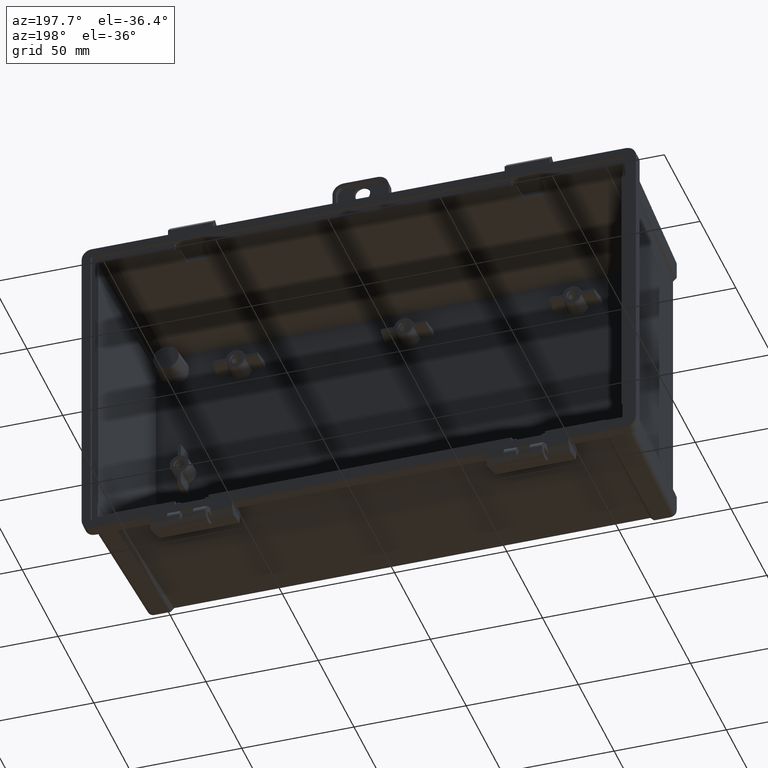
[diagram: clean part render]
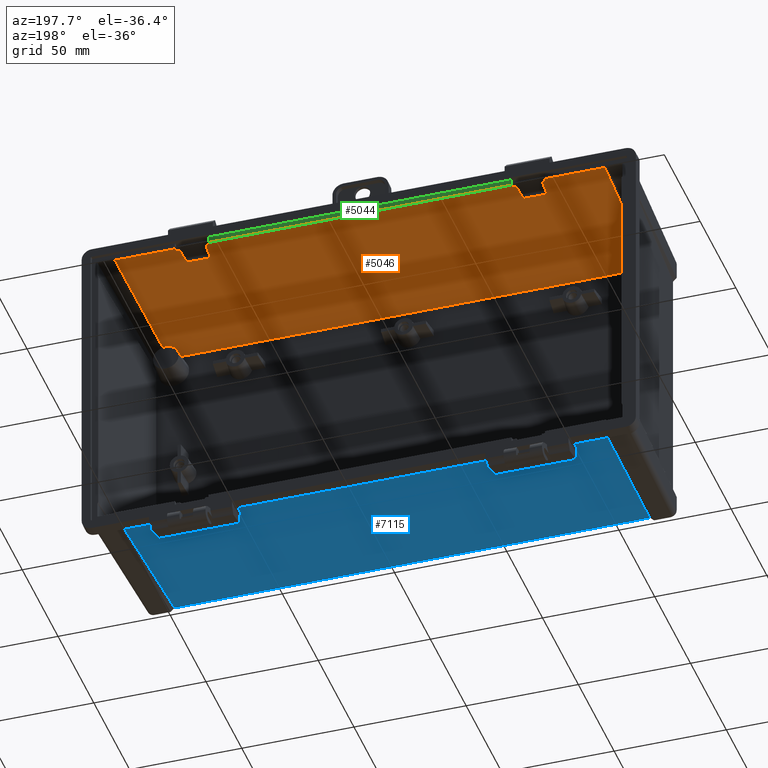
[diagram: same view with three faces highlighted in distinct colors, each labeled with its STEP entity id]
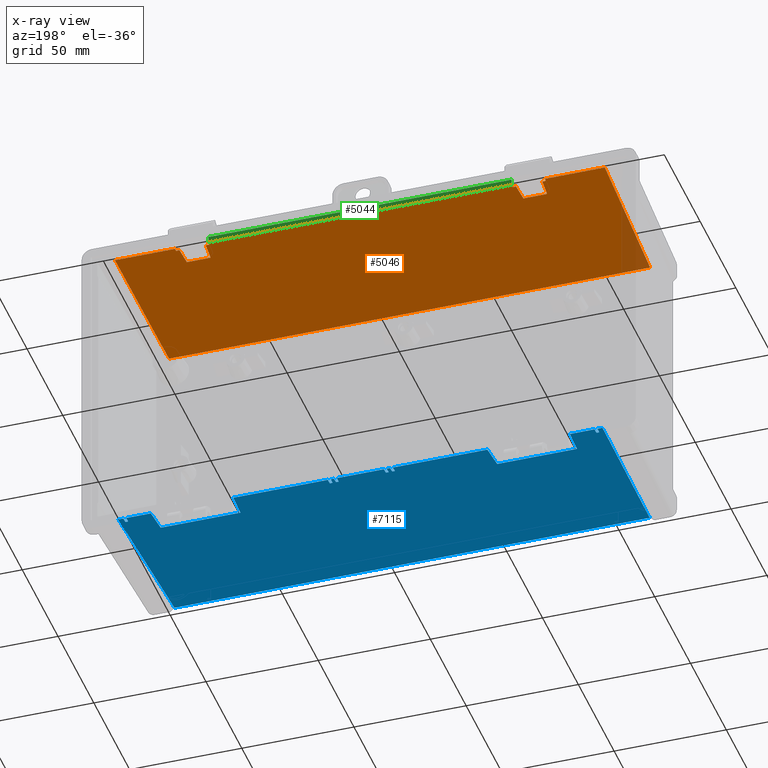
[diagram: x-ray of the same camera — body ghosted, the three highlighted faces saturated]
A machine part, auxiliary view with three faces highlighted in distinct colors.
The next image is the same camera in x-ray (body ghosted, the three faces saturated) — at least one of them is partly hidden behind the body in this view.
Their STEP definitions:

[orange] entity #5046 — the highlighted planar face has unit normal (0, -0.0523, 0.9986).
#872 = VERTEX_POINT ( 'NONE', #47724 ) ;
#874 = VERTEX_POINT ( 'NONE', #47725 ) ;
#927 = VERTEX_POINT ( 'NONE', #47760 ) ;
#929 = VERTEX_POINT ( 'NONE', #47761 ) ;
#941 = VERTEX_POINT ( 'NONE', #47769 ) ;
#943 = VERTEX_POINT ( 'NONE', #47770 ) ;
#959 = VERTEX_POINT ( 'NONE', #47782 ) ;
#961 = VERTEX_POINT ( 'NONE', #47783 ) ;
#963 = VERTEX_POINT ( 'NONE', #47784 ) ;
#965 = VERTEX_POINT ( 'NONE', #47785 ) ;
#967 = VERTEX_POINT ( 'NONE', #47786 ) ;
#968 = VERTEX_POINT ( 'NONE', #47787 ) ;
#969 = VERTEX_POINT ( 'NONE', #47788 ) ;
#970 = VERTEX_POINT ( 'NONE', #47789 ) ;
#971 = VERTEX_POINT ( 'NONE', #47790 ) ;
#973 = VERTEX_POINT ( 'NONE', #47791 ) ;
#4044 = ORIENTED_EDGE ( 'NONE', *, *, #5020, .T. ) ;
#4046 = ORIENTED_EDGE ( 'NONE', *, *, #5021, .F. ) ;
#4048 = ORIENTED_EDGE ( 'NONE', *, *, #4959, .F. ) ;
#4050 = ORIENTED_EDGE ( 'NONE', *, *, #7593, .T. ) ;
#4052 = ORIENTED_EDGE ( 'NONE', *, *, #5022, .F. ) ;
#4054 = ORIENTED_EDGE ( 'NONE', *, *, #5023, .F. ) ;
#4056 = ORIENTED_EDGE ( 'NONE', *, *, #7583, .T. ) ;
#4058 = ORIENTED_EDGE ( 'NONE', *, *, #5024, .F. ) ;
#4060 = ORIENTED_EDGE ( 'NONE', *, *, #4997, .F. ) ;
#4062 = ORIENTED_EDGE ( 'NONE', *, *, #5025, .F. ) ;
#4063 = ORIENTED_EDGE ( 'NONE', *, *, #5026, .T. ) ;
#4065 = ORIENTED_EDGE ( 'NONE', *, *, #5028, .T. ) ;
#4066 = ORIENTED_EDGE ( 'NONE', *, *, #5027, .F. ) ;
#4068 = ORIENTED_EDGE ( 'NONE', *, *, #5082, .F. ) ;
#4069 = ORIENTED_EDGE ( 'NONE', *, *, #5083, .T. ) ;
#4071 = ORIENTED_EDGE ( 'NONE', *, *, #5084, .F. ) ;
#4072 = ORIENTED_EDGE ( 'NONE', *, *, #5085, .T. ) ;
#4074 = ORIENTED_EDGE ( 'NONE', *, *, #5006, .F. ) ;
#4076 = ORIENTED_EDGE ( 'NONE', *, *, #5086, .T. ) ;
#4079 = ORIENTED_EDGE ( 'NONE', *, *, #5087, .F. ) ;
#4959 = EDGE_CURVE ( 'NONE', #872, #874, #18393, .T. ) ;
#4997 = EDGE_CURVE ( 'NONE', #927, #929, #22704, .T. ) ;
#5006 = EDGE_CURVE ( 'NONE', #941, #943, #22711, .T. ) ;
#5020 = EDGE_CURVE ( 'NONE', #959, #874, #22722, .T. ) ;
#5021 = EDGE_CURVE ( 'NONE', #961, #872, #22723, .T. ) ;
#5022 = EDGE_CURVE ( 'NONE', #46950, #961, #22724, .T. ) ;
#5023 = EDGE_CURVE ( 'NONE', #46952, #46949, #22725, .T. ) ;
#5024 = EDGE_CURVE ( 'NONE', #963, #46953, #22726, .T. ) ;
#5025 = EDGE_CURVE ( 'NONE', #929, #963, #22727, .T. ) ;
#5026 = EDGE_CURVE ( 'NONE', #927, #965, #22728, .T. ) ;
#5027 = EDGE_CURVE ( 'NONE', #967, #965, #22729, .T. ) ;
#5028 = EDGE_CURVE ( 'NONE', #967, #968, #22730, .T. ) ;
#5046 = ADVANCED_FACE ( 'NONE', ( #22747 ), #19700, .F. ) ;
#5082 = EDGE_CURVE ( 'NONE', #969, #968, #22886, .T. ) ;
#5083 = EDGE_CURVE ( 'NONE', #969, #970, #22887, .T. ) ;
#5084 = EDGE_CURVE ( 'NONE', #971, #970, #22888, .T. ) ;
#5085 = EDGE_CURVE ( 'NONE', #971, #943, #22889, .T. ) ;
#5086 = EDGE_CURVE ( 'NONE', #941, #973, #22890, .T. ) ;
#5087 = EDGE_CURVE ( 'NONE', #959, #973, #22891, .T. ) ;
#7583 = EDGE_CURVE ( 'NONE', #46952, #46953, #33501, .T. ) ;
#7593 = EDGE_CURVE ( 'NONE', #46950, #46949, #33503, .T. ) ;
#18393 = LINE ( 'NONE', #19473, #46319 ) ;
#19473 = CARTESIAN_POINT ( 'NONE',  ( -119.0000000000000300, -1.500000000000000000, 66.59134869185678000 ) ) ;
#19474 = DIRECTION ( 'NONE',  ( -1.000000000000000000, -0.0000000000000000000, 0.0000000000000000000 ) ) ;
#19558 = CARTESIAN_POINT ( 'NONE',  ( -119.0000000000000300, -1.500000000000000000, 66.59134869185678000 ) ) ;
#19559 = DIRECTION ( 'NONE',  ( -1.000000000000000000, -0.0000000000000000000, 0.0000000000000000000 ) ) ;
#19580 = CARTESIAN_POINT ( 'NONE',  ( -119.0000000000000300, -1.500000000000000000, 66.59134869185678000 ) ) ;
#19581 = DIRECTION ( 'NONE',  ( -1.000000000000000000, -0.0000000000000000000, 0.0000000000000000000 ) ) ;
#19614 = CARTESIAN_POINT ( 'NONE',  ( -109.1646878514005600, -1.488549029338853700, 66.59194881179981000 ) ) ;
#19615 = DIRECTION ( 'NONE',  ( -0.02767399372994194100, 0.9982470613321099400, 0.05231591166023782900 ) ) ;
#19616 = CARTESIAN_POINT ( 'NONE',  ( -81.69783906206481600, -15.30614250229795900, 65.86779942284617600 ) ) ;
#19617 = DIRECTION ( 'NONE',  ( -0.05226442768871403200, 0.9972646886342372300, 0.05226442768871403200 ) ) ;
#19618 = CARTESIAN_POINT ( 'NONE',  ( 119.0000000000000300, -3.000000000000000000, 66.51273702293225700 ) ) ;
#19619 = DIRECTION ( 'NONE',  ( -1.000000000000000000, -0.0000000000000000000, -0.0000000000000000000 ) ) ;
#19620 = CARTESIAN_POINT ( 'NONE',  ( 119.0000000000000300, -11.48629534754574300, 66.06798912942737400 ) ) ;
#19621 = DIRECTION ( 'NONE',  ( -1.000000000000000000, -0.0000000000000000000, -0.0000000000000000000 ) ) ;
#19622 = CARTESIAN_POINT ( 'NONE',  ( 119.0000000000000300, -3.000000000000000000, 66.51273702293225700 ) ) ;
#19623 = DIRECTION ( 'NONE',  ( -1.000000000000000000, -0.0000000000000000000, -0.0000000000000000000 ) ) ;
#19624 = CARTESIAN_POINT ( 'NONE',  ( -67.24231162210323000, 4.916987161487271300, 66.92764873867815800 ) ) ;
#19625 = DIRECTION ( 'NONE',  ( -0.05226442768871403200, -0.9972646886342372300, -0.05226442768871403200 ) ) ;
#19626 = CARTESIAN_POINT ( 'NONE',  ( 67.89242537769088400, -7.487922271453150800, 66.27753498309049000 ) ) ;
#19627 = DIRECTION ( 'NONE',  ( 0.05226442768871403200, -0.9972646886342372300, -0.05226442768871403200 ) ) ;
#19628 = CARTESIAN_POINT ( 'NONE',  ( 119.0000000000000300, -3.000000000000000000, 66.51273702293225700 ) ) ;
#19629 = DIRECTION ( 'NONE',  ( -1.000000000000000000, -0.0000000000000000000, -0.0000000000000000000 ) ) ;
#19630 = CARTESIAN_POINT ( 'NONE',  ( 69.49797734294693900, -8.009309827005429500, 66.25021021915819100 ) ) ;
#19631 = DIRECTION ( 'NONE',  ( 0.06444627875436294300, -0.9965535615346571300, -0.05222715909663704800 ) ) ;
#19700 = PLANE ( 'NONE',  #46404 ) ;
#19701 = CARTESIAN_POINT ( 'NONE',  ( 119.0000000000000300, -4.816824153149696000, 66.41752130371789100 ) ) ;
#19702 = DIRECTION ( 'NONE',  ( 0.0000000000000000000, -0.05233595624294395300, 0.9986295347545739400 ) ) ;
#19703 = DIRECTION ( 'NONE',  ( 0.0000000000000000000, -0.9986295347545739400, -0.05233595624294395300 ) ) ;
#19958 = CARTESIAN_POINT ( 'NONE',  ( 119.0000000000000300, -11.48629534754574300, 66.06798912942737400 ) ) ;
#19959 = DIRECTION ( 'NONE',  ( -1.000000000000000000, -0.0000000000000000000, -0.0000000000000000000 ) ) ;
#19960 = CARTESIAN_POINT ( 'NONE',  ( 80.86751506743809200, -2.357582988417645400, 66.54640467188293900 ) ) ;
#19961 = DIRECTION ( 'NONE',  ( 0.06444627875436294300, 0.9965535615346571300, 0.05222715909663704800 ) ) ;
#19962 = CARTESIAN_POINT ( 'NONE',  ( 119.0000000000000300, -3.000000000000000000, 66.51273702293225700 ) ) ;
#19963 = DIRECTION ( 'NONE',  ( -1.000000000000000000, -0.0000000000000000000, -0.0000000000000000000 ) ) ;
#19964 = CARTESIAN_POINT ( 'NONE',  ( 82.34795281765247000, -2.901233069357532100, 66.51791317843383000 ) ) ;
#19965 = DIRECTION ( 'NONE',  ( 0.05226442768871403200, 0.9972646886342372300, 0.05226442768871403200 ) ) ;
#19966 = CARTESIAN_POINT ( 'NONE',  ( 109.0800224824986900, -4.542569946145548000, 66.43189435766601000 ) ) ;
#19967 = DIRECTION ( 'NONE',  ( -0.02767399372994193100, -0.9982470613321099400, -0.05231591166023782900 ) ) ;
#19968 = CARTESIAN_POINT ( 'NONE',  ( 119.0000000000000300, -71.00000000000000000, 62.94900803168544500 ) ) ;
#19969 = DIRECTION ( 'NONE',  ( 1.000000000000000000, -0.0000000000000000000, -0.0000000000000000000 ) ) ;
#22704 = LINE ( 'NONE', #19558, #46354 ) ;
#22711 = LINE ( 'NONE', #19580, #46363 ) ;
#22722 = LINE ( 'NONE', #19614, #46377 ) ;
#22723 = LINE ( 'NONE', #19616, #46378 ) ;
#22724 = LINE ( 'NONE', #19618, #46379 ) ;
#22725 = LINE ( 'NONE', #19620, #46380 ) ;
#22726 = LINE ( 'NONE', #19622, #46381 ) ;
#22727 = LINE ( 'NONE', #19624, #46382 ) ;
#22728 = LINE ( 'NONE', #19626, #46383 ) ;
#22729 = LINE ( 'NONE', #19628, #46385 ) ;
#22730 = LINE ( 'NONE', #19630, #46387 ) ;
#22747 = FACE_OUTER_BOUND ( 'NONE', #47236, .T. ) ;
#22886 = LINE ( 'NONE', #19958, #46499 ) ;
#22887 = LINE ( 'NONE', #19960, #46500 ) ;
#22888 = LINE ( 'NONE', #19962, #46501 ) ;
#22889 = LINE ( 'NONE', #19964, #46502 ) ;
#22890 = LINE ( 'NONE', #19966, #46503 ) ;
#22891 = LINE ( 'NONE', #19968, #46504 ) ;
#33501 = LINE ( 'NONE', #36711, #35931 ) ;
#33503 = LINE ( 'NONE', #36723, #35933 ) ;
#35931 = VECTOR ( 'NONE', #36712, 1000.000000000000000 ) ;
#35933 = VECTOR ( 'NONE', #36724, 1000.000000000000000 ) ;
#36711 = CARTESIAN_POINT ( 'NONE',  ( -69.08002850903471900, -1.546432419265275900, 66.58891527187638800 ) ) ;
#36712 = DIRECTION ( 'NONE',  ( 0.06444627875436294300, 0.9965535615346571300, 0.05222715909663704800 ) ) ;
#36723 = CARTESIAN_POINT ( 'NONE',  ( -80.27416618904027200, -11.53272776681101400, 66.06555570944694000 ) ) ;
#36724 = DIRECTION ( 'NONE',  ( 0.06444627875436294300, -0.9965535615346571300, -0.05222715909663704800 ) ) ;
#42413 = CARTESIAN_POINT ( 'NONE',  ( -80.27716893445277400, -11.48629534754574300, 66.06798912942737400 ) ) ;
#42414 = CARTESIAN_POINT ( 'NONE',  ( -80.82597050084081000, -2.999999999999999100, 66.51273702293225700 ) ) ;
#42416 = CARTESIAN_POINT ( 'NONE',  ( -69.72283106554722600, -11.48629534754574500, 66.06798912942737400 ) ) ;
#42417 = CARTESIAN_POINT ( 'NONE',  ( -69.17402949915920400, -3.000000000000000900, 66.51273702293227100 ) ) ;
#46319 = VECTOR ( 'NONE', #19474, 1000.000000000000000 ) ;
#46354 = VECTOR ( 'NONE', #19559, 1000.000000000000000 ) ;
#46363 = VECTOR ( 'NONE', #19581, 1000.000000000000000 ) ;
#46377 = VECTOR ( 'NONE', #19615, 1000.000000000000000 ) ;
#46378 = VECTOR ( 'NONE', #19617, 1000.000000000000100 ) ;
#46379 = VECTOR ( 'NONE', #19619, 1000.000000000000000 ) ;
#46380 = VECTOR ( 'NONE', #19621, 1000.000000000000000 ) ;
#46381 = VECTOR ( 'NONE', #19623, 1000.000000000000000 ) ;
#46382 = VECTOR ( 'NONE', #19625, 1000.000000000000100 ) ;
#46383 = VECTOR ( 'NONE', #19627, 1000.000000000000100 ) ;
#46385 = VECTOR ( 'NONE', #19629, 1000.000000000000000 ) ;
#46387 = VECTOR ( 'NONE', #19631, 1000.000000000000000 ) ;
#46404 = AXIS2_PLACEMENT_3D ( 'NONE', #19701, #19702, #19703 ) ;
#46499 = VECTOR ( 'NONE', #19959, 1000.000000000000000 ) ;
#46500 = VECTOR ( 'NONE', #19961, 1000.000000000000000 ) ;
#46501 = VECTOR ( 'NONE', #19963, 1000.000000000000000 ) ;
#46502 = VECTOR ( 'NONE', #19965, 1000.000000000000100 ) ;
#46503 = VECTOR ( 'NONE', #19967, 1000.000000000000000 ) ;
#46504 = VECTOR ( 'NONE', #19969, 1000.000000000000000 ) ;
#46949 = VERTEX_POINT ( 'NONE', #42413 ) ;
#46950 = VERTEX_POINT ( 'NONE', #42414 ) ;
#46952 = VERTEX_POINT ( 'NONE', #42416 ) ;
#46953 = VERTEX_POINT ( 'NONE', #42417 ) ;
#47236 = EDGE_LOOP ( 'NONE', ( #4044, #4048, #4046, #4052, #4050, #4054, #4056, #4058, #4062, #4060, #4063, #4066, #4065, #4068, #4069, #4071, #4072, #4074, #4076, #4079 ) ) ;
#47724 = CARTESIAN_POINT ( 'NONE',  ( -82.42138833107547700, -1.499999999999999600, 66.59134869185683700 ) ) ;
#47725 = CARTESIAN_POINT ( 'NONE',  ( -109.1643704008389200, -1.500000000000000000, 66.59134869185678000 ) ) ;
#47760 = CARTESIAN_POINT ( 'NONE',  ( 67.57861166892456600, -1.499999999999999600, 66.59134869185682200 ) ) ;
#47761 = CARTESIAN_POINT ( 'NONE',  ( -67.57861166892456600, -1.499999999999999600, 66.59134869185682200 ) ) ;
#47769 = CARTESIAN_POINT ( 'NONE',  ( 109.1643704008387900, -1.500000000000000000, 66.59134869185678000 ) ) ;
#47770 = CARTESIAN_POINT ( 'NONE',  ( 82.42138833107546200, -1.500000000000000200, 66.59134869185682200 ) ) ;
#47782 = CARTESIAN_POINT ( 'NONE',  ( -107.2376504146418900, -71.00000000000000000, 62.94900803168544500 ) ) ;
#47783 = CARTESIAN_POINT ( 'NONE',  ( -82.34277666215089700, -3.000000000000000000, 66.51273702293225700 ) ) ;
#47784 = CARTESIAN_POINT ( 'NONE',  ( -67.65722333784913200, -3.000000000000000000, 66.51273702293225700 ) ) ;
#47785 = CARTESIAN_POINT ( 'NONE',  ( 67.65722333784913200, -3.000000000000000000, 66.51273702293225700 ) ) ;
#47786 = CARTESIAN_POINT ( 'NONE',  ( 69.17402949915919000, -3.000000000000000000, 66.51273702293227100 ) ) ;
#47787 = CARTESIAN_POINT ( 'NONE',  ( 69.72283106554719700, -11.48629534754574300, 66.06798912942737400 ) ) ;
#47788 = CARTESIAN_POINT ( 'NONE',  ( 80.27716893445274600, -11.48629534754574300, 66.06798912942737400 ) ) ;
#47789 = CARTESIAN_POINT ( 'NONE',  ( 80.82597050084076800, -3.000000000000000000, 66.51273702293225700 ) ) ;
#47790 = CARTESIAN_POINT ( 'NONE',  ( 82.34277666215089700, -3.000000000000000000, 66.51273702293225700 ) ) ;
#47791 = CARTESIAN_POINT ( 'NONE',  ( 107.2376504146418800, -71.00000000000000000, 62.94900803168544500 ) ) ;

[blue] entity #7115 — the highlighted planar face has unit normal (0, -0.0523, -0.9986).
#655 = VERTEX_POINT ( 'NONE', #47587 ) ;
#657 = VERTEX_POINT ( 'NONE', #47588 ) ;
#697 = VERTEX_POINT ( 'NONE', #47616 ) ;
#700 = VERTEX_POINT ( 'NONE', #47618 ) ;
#710 = VERTEX_POINT ( 'NONE', #47625 ) ;
#711 = VERTEX_POINT ( 'NONE', #47626 ) ;
#719 = VERTEX_POINT ( 'NONE', #47631 ) ;
#721 = VERTEX_POINT ( 'NONE', #47632 ) ;
#730 = VERTEX_POINT ( 'NONE', #47637 ) ;
#731 = VERTEX_POINT ( 'NONE', #47638 ) ;
#741 = VERTEX_POINT ( 'NONE', #47643 ) ;
#743 = VERTEX_POINT ( 'NONE', #47644 ) ;
#786 = VERTEX_POINT ( 'NONE', #47667 ) ;
#802 = VERTEX_POINT ( 'NONE', #47677 ) ;
#1992 = VERTEX_POINT ( 'NONE', #19061 ) ;
#1993 = VERTEX_POINT ( 'NONE', #19062 ) ;
#2195 = VERTEX_POINT ( 'NONE', #19174 ) ;
#2208 = VERTEX_POINT ( 'NONE', #19181 ) ;
#2209 = VERTEX_POINT ( 'NONE', #19182 ) ;
#2212 = VERTEX_POINT ( 'NONE', #19183 ) ;
#2213 = VERTEX_POINT ( 'NONE', #19184 ) ;
#2215 = VERTEX_POINT ( 'NONE', #19185 ) ;
#2217 = VERTEX_POINT ( 'NONE', #19186 ) ;
#2218 = VERTEX_POINT ( 'NONE', #19187 ) ;
#2220 = VERTEX_POINT ( 'NONE', #19188 ) ;
#2222 = VERTEX_POINT ( 'NONE', #19189 ) ;
#2224 = VERTEX_POINT ( 'NONE', #19190 ) ;
#3264 = VERTEX_POINT ( 'NONE', #19243 ) ;
#3265 = VERTEX_POINT ( 'NONE', #19244 ) ;
#3266 = VERTEX_POINT ( 'NONE', #19245 ) ;
#3267 = VERTEX_POINT ( 'NONE', #19246 ) ;
#3268 = VERTEX_POINT ( 'NONE', #19247 ) ;
#3269 = VERTEX_POINT ( 'NONE', #19248 ) ;
#3270 = VERTEX_POINT ( 'NONE', #19249 ) ;
#3271 = VERTEX_POINT ( 'NONE', #19250 ) ;
#3273 = VERTEX_POINT ( 'NONE', #19251 ) ;
#3275 = VERTEX_POINT ( 'NONE', #19252 ) ;
#3277 = VERTEX_POINT ( 'NONE', #19253 ) ;
#5783 = EDGE_CURVE ( 'NONE', #1993, #1992, #23332, .T. ) ;
#6395 = ORIENTED_EDGE ( 'NONE', *, *, #5783, .T. ) ;
#6396 = ORIENTED_EDGE ( 'NONE', *, *, #46109, .T. ) ;
#6397 = ORIENTED_EDGE ( 'NONE', *, *, #7310, .T. ) ;
#6398 = ORIENTED_EDGE ( 'NONE', *, *, #7311, .F. ) ;
#6399 = ORIENTED_EDGE ( 'NONE', *, *, #7312, .T. ) ;
#6400 = ORIENTED_EDGE ( 'NONE', *, *, #46198, .T. ) ;
#6401 = ORIENTED_EDGE ( 'NONE', *, *, #7210, .T. ) ;
#6402 = ORIENTED_EDGE ( 'NONE', *, *, #7234, .T. ) ;
#6403 = ORIENTED_EDGE ( 'NONE', *, *, #7313, .F. ) ;
#6404 = ORIENTED_EDGE ( 'NONE', *, *, #7314, .T. ) ;
#6405 = ORIENTED_EDGE ( 'NONE', *, *, #7220, .T. ) ;
#6406 = ORIENTED_EDGE ( 'NONE', *, *, #7315, .F. ) ;
#6407 = ORIENTED_EDGE ( 'NONE', *, *, #46208, .T. ) ;
#6408 = ORIENTED_EDGE ( 'NONE', *, *, #7316, .T. ) ;
#6409 = ORIENTED_EDGE ( 'NONE', *, *, #7231, .T. ) ;
#6410 = ORIENTED_EDGE ( 'NONE', *, *, #7317, .F. ) ;
#6411 = ORIENTED_EDGE ( 'NONE', *, *, #46221, .T. ) ;
#6412 = ORIENTED_EDGE ( 'NONE', *, *, #7318, .T. ) ;
#6413 = ORIENTED_EDGE ( 'NONE', *, *, #7228, .T. ) ;
#6414 = ORIENTED_EDGE ( 'NONE', *, *, #7319, .F. ) ;
#6415 = ORIENTED_EDGE ( 'NONE', *, *, #46215, .T. ) ;
#6416 = ORIENTED_EDGE ( 'NONE', *, *, #7320, .T. ) ;
#6417 = ORIENTED_EDGE ( 'NONE', *, *, #7225, .T. ) ;
#6418 = ORIENTED_EDGE ( 'NONE', *, *, #7321, .F. ) ;
#6419 = ORIENTED_EDGE ( 'NONE', *, *, #7322, .F. ) ;
#6420 = ORIENTED_EDGE ( 'NONE', *, *, #46229, .T. ) ;
#6421 = ORIENTED_EDGE ( 'NONE', *, *, #7307, .F. ) ;
#6422 = ORIENTED_EDGE ( 'NONE', *, *, #7324, .T. ) ;
#6423 = ORIENTED_EDGE ( 'NONE', *, *, #7323, .F. ) ;
#6424 = ORIENTED_EDGE ( 'NONE', *, *, #7325, .T. ) ;
#6425 = ORIENTED_EDGE ( 'NONE', *, *, #7326, .T. ) ;
#6426 = ORIENTED_EDGE ( 'NONE', *, *, #7327, .F. ) ;
#6427 = ORIENTED_EDGE ( 'NONE', *, *, #46267, .T. ) ;
#6428 = ORIENTED_EDGE ( 'NONE', *, *, #7328, .T. ) ;
#6429 = ORIENTED_EDGE ( 'NONE', *, *, #7330, .T. ) ;
#6430 = ORIENTED_EDGE ( 'NONE', *, *, #7329, .T. ) ;
#6431 = ORIENTED_EDGE ( 'NONE', *, *, #7331, .T. ) ;
#6432 = ORIENTED_EDGE ( 'NONE', *, *, #7332, .T. ) ;
#7115 = ADVANCED_FACE ( 'NONE', ( #23474 ), #32749, .T. ) ;
#7210 = EDGE_CURVE ( 'NONE', #700, #2195, #33279, .T. ) ;
#7220 = EDGE_CURVE ( 'NONE', #2209, #2208, #33289, .T. ) ;
#7225 = EDGE_CURVE ( 'NONE', #2213, #2212, #33294, .T. ) ;
#7228 = EDGE_CURVE ( 'NONE', #2217, #2215, #33297, .T. ) ;
#7231 = EDGE_CURVE ( 'NONE', #2220, #2218, #33300, .T. ) ;
#7234 = EDGE_CURVE ( 'NONE', #2224, #2222, #33303, .T. ) ;
#7307 = EDGE_CURVE ( 'NONE', #3264, #743, #33360, .T. ) ;
#7310 = EDGE_CURVE ( 'NONE', #655, #1993, #33363, .T. ) ;
#7311 = EDGE_CURVE ( 'NONE', #697, #1992, #33364, .T. ) ;
#7312 = EDGE_CURVE ( 'NONE', #2195, #3265, #33365, .T. ) ;
#7313 = EDGE_CURVE ( 'NONE', #2224, #3265, #33366, .T. ) ;
#7314 = EDGE_CURVE ( 'NONE', #2222, #2209, #33367, .T. ) ;
#7315 = EDGE_CURVE ( 'NONE', #710, #2208, #33368, .T. ) ;
#7316 = EDGE_CURVE ( 'NONE', #711, #2220, #33369, .T. ) ;
#7317 = EDGE_CURVE ( 'NONE', #731, #2218, #33370, .T. ) ;
#7318 = EDGE_CURVE ( 'NONE', #730, #2217, #33371, .T. ) ;
#7319 = EDGE_CURVE ( 'NONE', #719, #2215, #33372, .T. ) ;
#7320 = EDGE_CURVE ( 'NONE', #721, #2213, #33373, .T. ) ;
#7321 = EDGE_CURVE ( 'NONE', #741, #2212, #33374, .T. ) ;
#7322 = EDGE_CURVE ( 'NONE', #3266, #3264, #33375, .T. ) ;
#7323 = EDGE_CURVE ( 'NONE', #3267, #3266, #33376, .T. ) ;
#7324 = EDGE_CURVE ( 'NONE', #3267, #3268, #33377, .T. ) ;
#7325 = EDGE_CURVE ( 'NONE', #3268, #3269, #33378, .T. ) ;
#7326 = EDGE_CURVE ( 'NONE', #3269, #3270, #33379, .T. ) ;
#7327 = EDGE_CURVE ( 'NONE', #786, #3270, #33380, .T. ) ;
#7328 = EDGE_CURVE ( 'NONE', #802, #3271, #23535, .T. ) ;
#7329 = EDGE_CURVE ( 'NONE', #3271, #3273, #33381, .T. ) ;
#7330 = EDGE_CURVE ( 'NONE', #3273, #3275, #33382, .T. ) ;
#7331 = EDGE_CURVE ( 'NONE', #3275, #3277, #33383, .T. ) ;
#7332 = EDGE_CURVE ( 'NONE', #3277, #657, #23537, .T. ) ;
#19061 = CARTESIAN_POINT ( 'NONE',  ( -104.3999999999999600, -5.000000000000000000, -69.91272467535890200 ) ) ;
#19062 = CARTESIAN_POINT ( 'NONE',  ( -105.6000000000018100, -5.000000000000000000, -69.91272467535890200 ) ) ;
#19174 = CARTESIAN_POINT ( 'NONE',  ( -92.76380091191846600, -14.04751542906448600, -69.43856448369257400 ) ) ;
#19181 = CARTESIAN_POINT ( 'NONE',  ( -13.28101944820761600, -4.999999999999999100, -69.91272467535890200 ) ) ;
#19182 = CARTESIAN_POINT ( 'NONE',  ( -14.48101944820806600, -5.000000000000000000, -69.91272467535890200 ) ) ;
#19183 = CARTESIAN_POINT ( 'NONE',  ( 14.48101944820761800, -4.999999999999999100, -69.91272467535890200 ) ) ;
#19184 = CARTESIAN_POINT ( 'NONE',  ( 13.28101944820715700, -5.000000000000000000, -69.91272467535890200 ) ) ;
#19185 = CARTESIAN_POINT ( 'NONE',  ( 11.71898055179237400, -4.999999999999999100, -69.91272467535890200 ) ) ;
#19186 = CARTESIAN_POINT ( 'NONE',  ( 10.51898055179191400, -5.000000000000000000, -69.91272467535890200 ) ) ;
#19187 = CARTESIAN_POINT ( 'NONE',  ( -10.51898055179236900, -5.000000000000000000, -69.91272467535890200 ) ) ;
#19188 = CARTESIAN_POINT ( 'NONE',  ( -11.71898055179282300, -5.000000000000000000, -69.91272467535890200 ) ) ;
#19189 = CARTESIAN_POINT ( 'NONE',  ( -14.52989363000661900, -2.200000000000237800, -70.05946645735140500 ) ) ;
#19190 = CARTESIAN_POINT ( 'NONE',  ( -56.61529711442268800, -2.200000000000000200, -70.05946645735141900 ) ) ;
#19243 = CARTESIAN_POINT ( 'NONE',  ( 57.23619908808151300, -14.04751542906448600, -69.43856448369257400 ) ) ;
#19244 = CARTESIAN_POINT ( 'NONE',  ( -57.23619908808152000, -14.04751542906448600, -69.43856448369257400 ) ) ;
#19245 = CARTESIAN_POINT ( 'NONE',  ( 92.76380091191848000, -14.04751542906448600, -69.43856448369257400 ) ) ;
#19246 = CARTESIAN_POINT ( 'NONE',  ( 93.38470288557731200, -2.200000000000000200, -70.05946645735141900 ) ) ;
#19247 = CARTESIAN_POINT ( 'NONE',  ( 104.3511258182008400, -2.200000000000000200, -70.05946645735141900 ) ) ;
#19248 = CARTESIAN_POINT ( 'NONE',  ( 104.3999999999981700, -5.000000000000000000, -69.91272467535890200 ) ) ;
#19249 = CARTESIAN_POINT ( 'NONE',  ( 105.6000000000000100, -5.000000000000000000, -69.91272467535890200 ) ) ;
#19250 = CARTESIAN_POINT ( 'NONE',  ( 107.9026320182411400, -2.340249942886091000, -70.05211626930017100 ) ) ;
#19251 = CARTESIAN_POINT ( 'NONE',  ( 105.9014514283063900, -74.52616797812146400, -66.26901260956586300 ) ) ;
#19252 = CARTESIAN_POINT ( 'NONE',  ( -105.9014514283065000, -74.52616797812146400, -66.26901260956586300 ) ) ;
#19253 = CARTESIAN_POINT ( 'NONE',  ( -107.9026320182412200, -2.340249942886153200, -70.05211626930017100 ) ) ;
#23332 = LINE ( 'NONE', #32293, #31897 ) ;
#23474 = FACE_OUTER_BOUND ( 'NONE', #47094, .T. ) ;
#23535 =( BOUNDED_CURVE ( )  B_SPLINE_CURVE ( 3, ( #36399, #36400, #36401, #36402 ),
 .UNSPECIFIED., .F., .T. ) 
 B_SPLINE_CURVE_WITH_KNOTS ( ( 4, 4 ),
 ( 1.644776854829941500, 2.412490917215292200 ),
 .UNSPECIFIED. ) 
 CURVE ( )  GEOMETRIC_REPRESENTATION_ITEM ( )  RATIONAL_B_SPLINE_CURVE ( ( 1.000000000000000000, 0.9514847197226652400, 0.9514847197226652400, 1.000000000000000000 ) ) 
 REPRESENTATION_ITEM ( '' )  );
#23537 =( BOUNDED_CURVE ( )  B_SPLINE_CURVE ( 3, ( #36409, #36410, #36411, #36412 ),
 .UNSPECIFIED., .F., .T. ) 
 B_SPLINE_CURVE_WITH_KNOTS ( ( 4, 4 ),
 ( 3.870694389964107100, 4.638408452349526800 ),
 .UNSPECIFIED. ) 
 CURVE ( )  GEOMETRIC_REPRESENTATION_ITEM ( )  RATIONAL_B_SPLINE_CURVE ( ( 1.000000000000000000, 0.9514847197226565800, 0.9514847197226565800, 1.000000000000000000 ) ) 
 REPRESENTATION_ITEM ( '' )  );
#30275 = LINE ( 'NONE', #41593, #40957 ) ;
#31897 = VECTOR ( 'NONE', #32294, 1000.000000000000000 ) ;
#32070 = AXIS2_PLACEMENT_3D ( 'NONE', #32750, #32751, #32752 ) ;
#32174 = VECTOR ( 'NONE', #32979, 1000.000000000000100 ) ;
#32184 = VECTOR ( 'NONE', #32999, 1000.000000000000000 ) ;
#32189 = VECTOR ( 'NONE', #33009, 1000.000000000000000 ) ;
#32192 = VECTOR ( 'NONE', #33015, 1000.000000000000000 ) ;
#32195 = VECTOR ( 'NONE', #33021, 1000.000000000000000 ) ;
#32199 = VECTOR ( 'NONE', #33027, 1000.000000000000000 ) ;
#32293 = CARTESIAN_POINT ( 'NONE',  ( -118.9999999999999900, -5.000000000000000000, -69.91272467535890200 ) ) ;
#32294 = DIRECTION ( 'NONE',  ( 1.000000000000000000, -0.0000000000000000000, -0.0000000000000000000 ) ) ;
#32749 = PLANE ( 'NONE',  #32070 ) ;
#32750 = CARTESIAN_POINT ( 'NONE',  ( -118.9999999999999900, -5.000000000000000000, -69.91272467535890200 ) ) ;
#32751 = DIRECTION ( 'NONE',  ( 0.0000000000000000000, -0.05233595624294395300, -0.9986295347545739400 ) ) ;
#32752 = DIRECTION ( 'NONE',  ( 0.0000000000000000000, 0.9986295347545739400, -0.05233595624294395300 ) ) ;
#32978 = CARTESIAN_POINT ( 'NONE',  ( -93.30833192651985500, -3.657244708748240000, -69.98309549829396300 ) ) ;
#32979 = DIRECTION ( 'NONE',  ( 0.05226442768871403200, -0.9972646886342372300, 0.05226442768871403200 ) ) ;
#32998 = CARTESIAN_POINT ( 'NONE',  ( -118.9999999999999900, -5.000000000000000000, -69.91272467535890200 ) ) ;
#32999 = DIRECTION ( 'NONE',  ( 1.000000000000000000, -0.0000000000000000000, -0.0000000000000000000 ) ) ;
#33008 = CARTESIAN_POINT ( 'NONE',  ( -118.9999999999999900, -5.000000000000000000, -69.91272467535890200 ) ) ;
#33009 = DIRECTION ( 'NONE',  ( 1.000000000000000000, -0.0000000000000000000, -0.0000000000000000000 ) ) ;
#33014 = CARTESIAN_POINT ( 'NONE',  ( -118.9999999999999900, -5.000000000000000000, -69.91272467535890200 ) ) ;
#33015 = DIRECTION ( 'NONE',  ( 1.000000000000000000, -0.0000000000000000000, -0.0000000000000000000 ) ) ;
#33020 = CARTESIAN_POINT ( 'NONE',  ( -118.9999999999999900, -5.000000000000000000, -69.91272467535890200 ) ) ;
#33021 = DIRECTION ( 'NONE',  ( 1.000000000000000000, -0.0000000000000000000, -0.0000000000000000000 ) ) ;
#33026 = CARTESIAN_POINT ( 'NONE',  ( -108.0361506231268700, -2.200000000000000200, -70.05946645735141900 ) ) ;
#33027 = DIRECTION ( 'NONE',  ( 1.000000000000000000, -0.0000000000000000000, -0.0000000000000000000 ) ) ;
#33200 = CARTESIAN_POINT ( 'NONE',  ( 56.28193251323583700, 4.160975522096563900, -70.39283105853829200 ) ) ;
#33201 = DIRECTION ( 'NONE',  ( -0.05226442768871403200, 0.9972646886342372300, -0.05226442768871403200 ) ) ;
#33206 = CARTESIAN_POINT ( 'NONE',  ( -105.6040702830381300, -4.766813640917591000, -69.92494545459752000 ) ) ;
#33207 = DIRECTION ( 'NONE',  ( 0.01742849579092222600, -0.9984778551437666300, 0.05232800705137903600 ) ) ;
#33208 = CARTESIAN_POINT ( 'NONE',  ( -104.4044347859967600, -5.254068719597243300, -69.89940949797953400 ) ) ;
#33209 = DIRECTION ( 'NONE',  ( -0.01742849579092160800, -0.9984778551437666300, 0.05232800705137903600 ) ) ;
#33210 = CARTESIAN_POINT ( 'NONE',  ( -118.9999999999999900, -14.04751542906448600, -69.43856448369257400 ) ) ;
#33211 = DIRECTION ( 'NONE',  ( 1.000000000000000000, -0.0000000000000000000, -0.0000000000000000000 ) ) ;
#33212 = CARTESIAN_POINT ( 'NONE',  ( -56.93204626882347700, -8.243933910843857400, -69.74271730295062400 ) ) ;
#33213 = DIRECTION ( 'NONE',  ( -0.05226442768871403200, -0.9972646886342372300, 0.05226442768871403200 ) ) ;
#33214 = CARTESIAN_POINT ( 'NONE',  ( -14.51276734624533300, -3.181164139561396500, -70.00804582368485300 ) ) ;
#33215 = DIRECTION ( 'NONE',  ( 0.01742849579092199000, -0.9984778551437666300, 0.05232800705137903600 ) ) ;
#33216 = CARTESIAN_POINT ( 'NONE',  ( -13.31313184920397700, -6.839718220953429300, -69.81630912889218600 ) ) ;
#33217 = DIRECTION ( 'NONE',  ( -0.01742849579092183700, -0.9984778551437666300, 0.05232800705137903600 ) ) ;
#33279 = LINE ( 'NONE', #32978, #32174 ) ;
#33289 = LINE ( 'NONE', #32998, #32184 ) ;
#33294 = LINE ( 'NONE', #33008, #32189 ) ;
#33297 = LINE ( 'NONE', #33014, #32192 ) ;
#33300 = LINE ( 'NONE', #33020, #32195 ) ;
#33303 = LINE ( 'NONE', #33026, #32199 ) ;
#33360 = LINE ( 'NONE', #33200, #35782 ) ;
#33363 = LINE ( 'NONE', #33206, #35785 ) ;
#33364 = LINE ( 'NONE', #33208, #35786 ) ;
#33365 = LINE ( 'NONE', #33210, #35787 ) ;
#33366 = LINE ( 'NONE', #33212, #35788 ) ;
#33367 = LINE ( 'NONE', #33214, #35789 ) ;
#33368 = LINE ( 'NONE', #33216, #35790 ) ;
#33369 = LINE ( 'NONE', #36375, #35791 ) ;
#33370 = LINE ( 'NONE', #36377, #35792 ) ;
#33371 = LINE ( 'NONE', #36379, #35793 ) ;
#33372 = LINE ( 'NONE', #36381, #35794 ) ;
#33373 = LINE ( 'NONE', #36383, #35795 ) ;
#33374 = LINE ( 'NONE', #36385, #35796 ) ;
#33375 = LINE ( 'NONE', #36387, #35797 ) ;
#33376 = LINE ( 'NONE', #36389, #35798 ) ;
#33377 = LINE ( 'NONE', #36391, #35799 ) ;
#33378 = LINE ( 'NONE', #36393, #35800 ) ;
#33379 = LINE ( 'NONE', #36395, #35801 ) ;
#33380 = LINE ( 'NONE', #36397, #35802 ) ;
#33381 = LINE ( 'NONE', #36403, #35803 ) ;
#33382 = LINE ( 'NONE', #36405, #35804 ) ;
#33383 = LINE ( 'NONE', #36407, #35805 ) ;
#35782 = VECTOR ( 'NONE', #33201, 1000.000000000000100 ) ;
#35785 = VECTOR ( 'NONE', #33207, 1000.000000000000100 ) ;
#35786 = VECTOR ( 'NONE', #33209, 1000.000000000000100 ) ;
#35787 = VECTOR ( 'NONE', #33211, 1000.000000000000000 ) ;
#35788 = VECTOR ( 'NONE', #33213, 1000.000000000000100 ) ;
#35789 = VECTOR ( 'NONE', #33215, 1000.000000000000100 ) ;
#35790 = VECTOR ( 'NONE', #33217, 1000.000000000000100 ) ;
#35791 = VECTOR ( 'NONE', #36376, 1000.000000000000100 ) ;
#35792 = VECTOR ( 'NONE', #36378, 1000.000000000000100 ) ;
#35793 = VECTOR ( 'NONE', #36380, 1000.000000000000100 ) ;
#35794 = VECTOR ( 'NONE', #36382, 1000.000000000000100 ) ;
#35795 = VECTOR ( 'NONE', #36384, 1000.000000000000100 ) ;
#35796 = VECTOR ( 'NONE', #36386, 1000.000000000000100 ) ;
#35797 = VECTOR ( 'NONE', #36388, 1000.000000000000000 ) ;
#35798 = VECTOR ( 'NONE', #36390, 1000.000000000000100 ) ;
#35799 = VECTOR ( 'NONE', #36392, 1000.000000000000000 ) ;
#35800 = VECTOR ( 'NONE', #36394, 1000.000000000000100 ) ;
#35801 = VECTOR ( 'NONE', #36396, 1000.000000000000000 ) ;
#35802 = VECTOR ( 'NONE', #36398, 1000.000000000000100 ) ;
#35803 = VECTOR ( 'NONE', #36404, 1000.000000000000000 ) ;
#35804 = VECTOR ( 'NONE', #36406, 1000.000000000000000 ) ;
#35805 = VECTOR ( 'NONE', #36408, 1000.000000000000000 ) ;
#36375 = CARTESIAN_POINT ( 'NONE',  ( -11.75156742595477500, -3.133099229568930200, -70.01056479887898800 ) ) ;
#36376 = DIRECTION ( 'NONE',  ( 0.01742849579092199000, -0.9984778551437666300, 0.05232800705137903600 ) ) ;
#36377 = CARTESIAN_POINT ( 'NONE',  ( -10.55193192891341900, -6.887783130945896600, -69.81379015369803700 ) ) ;
#36378 = DIRECTION ( 'NONE',  ( -0.01742849579092183700, -0.9984778551437666300, 0.05232800705137903600 ) ) ;
#36379 = CARTESIAN_POINT ( 'NONE',  ( 10.47963884211629300, -2.746114962168868100, -70.03084578495089800 ) ) ;
#36380 = DIRECTION ( 'NONE',  ( 0.01742849579092183700, -0.9984778551437666300, 0.05232800705137903600 ) ) ;
#36381 = CARTESIAN_POINT ( 'NONE',  ( 11.67927433915764900, -7.274767398345995100, -69.79350916762612700 ) ) ;
#36382 = DIRECTION ( 'NONE',  ( -0.01742849579092199000, -0.9984778551437666300, 0.05232800705137903600 ) ) ;
#36383 = CARTESIAN_POINT ( 'NONE',  ( 13.24083876240687900, -2.698050052176401300, -70.03336476014504800 ) ) ;
#36384 = DIRECTION ( 'NONE',  ( 0.01742849579092183700, -0.9984778551437666300, 0.05232800705137903600 ) ) ;
#36385 = CARTESIAN_POINT ( 'NONE',  ( 14.44047425944820700, -7.322832308338462300, -69.79099019243199100 ) ) ;
#36386 = DIRECTION ( 'NONE',  ( -0.01742849579092199000, -0.9984778551437666300, 0.05232800705137903600 ) ) ;
#36387 = CARTESIAN_POINT ( 'NONE',  ( -118.9999999999999900, -14.04751542906448600, -69.43856448369257400 ) ) ;
#36388 = DIRECTION ( 'NONE',  ( -1.000000000000000000, -0.0000000000000000000, -0.0000000000000000000 ) ) ;
#36389 = CARTESIAN_POINT ( 'NONE',  ( 93.50000000000000000, 2.857681911356857100E-016, -70.17476357177412200 ) ) ;
#36390 = DIRECTION ( 'NONE',  ( -0.05226442768871403200, -0.9972646886342372300, 0.05226442768871403200 ) ) ;
#36391 = CARTESIAN_POINT ( 'NONE',  ( -108.0361506231268700, -2.200000000000000200, -70.05946645735141900 ) ) ;
#36392 = DIRECTION ( 'NONE',  ( 1.000000000000000000, -0.0000000000000000000, -0.0000000000000000000 ) ) ;
#36393 = CARTESIAN_POINT ( 'NONE',  ( 104.3321416991996500, -1.112400550820269500, -70.11646512923239500 ) ) ;
#36394 = DIRECTION ( 'NONE',  ( 0.01742849579092160800, -0.9984778551437666300, 0.05232800705137903600 ) ) ;
#36395 = CARTESIAN_POINT ( 'NONE',  ( -118.9999999999999900, -5.000000000000000000, -69.91272467535890200 ) ) ;
#36396 = DIRECTION ( 'NONE',  ( 1.000000000000000000, -0.0000000000000000000, -0.0000000000000000000 ) ) ;
#36397 = CARTESIAN_POINT ( 'NONE',  ( 105.5317771962410400, -8.908481809694709600, -69.70788982334464400 ) ) ;
#36398 = DIRECTION ( 'NONE',  ( -0.01742849579092222600, -0.9984778551437666300, 0.05232800705137903600 ) ) ;
#36399 = CARTESIAN_POINT ( 'NONE',  ( 107.4189019757666900, -2.200000000000000200, -70.05946645735141900 ) ) ;
#36400 = CARTESIAN_POINT ( 'NONE',  ( 107.6044444191563200, -2.199999999999983300, -70.05946645735141900 ) ) ;
#36401 = CARTESIAN_POINT ( 'NONE',  ( 107.7739094080827700, -2.249133717014015300, -70.05689146835479200 ) ) ;
#36402 = CARTESIAN_POINT ( 'NONE',  ( 107.9026320182411400, -2.340249942886091000, -70.05211626930017100 ) ) ;
#36403 = CARTESIAN_POINT ( 'NONE',  ( 107.6551799640785100, -11.26625781507700100, -69.58432401885571000 ) ) ;
#36404 = DIRECTION ( 'NONE',  ( -0.02767399372994193100, -0.9982470613321099400, 0.05231591166023782900 ) ) ;
#36405 = CARTESIAN_POINT ( 'NONE',  ( -118.9999999999999900, -74.52616797812146400, -66.26901260956586300 ) ) ;
#36406 = DIRECTION ( 'NONE',  ( -1.000000000000000000, 0.0000000000000000000, 0.0000000000000000000 ) ) ;
#36407 = CARTESIAN_POINT ( 'NONE',  ( -107.9066788351482600, -2.194274514669426700, -70.05976651732291300 ) ) ;
#36408 = DIRECTION ( 'NONE',  ( -0.02767399372994194100, 0.9982470613321099400, -0.05231591166023782900 ) ) ;
#36409 = CARTESIAN_POINT ( 'NONE',  ( -107.9026320182412200, -2.340249942886153200, -70.05211626930017100 ) ) ;
#36410 = CARTESIAN_POINT ( 'NONE',  ( -107.7739094080828900, -2.249133717014054800, -70.05689146835477700 ) ) ;
#36411 = CARTESIAN_POINT ( 'NONE',  ( -107.6044444191564200, -2.199999999999999300, -70.05946645735141900 ) ) ;
#36412 = CARTESIAN_POINT ( 'NONE',  ( -107.4189019757667700, -2.200000000000000200, -70.05946645735141900 ) ) ;
#40957 = VECTOR ( 'NONE', #41594, 1000.000000000000000 ) ;
#41086 = VECTOR ( 'NONE', #42063, 1000.000000000000000 ) ;
#41096 = VECTOR ( 'NONE', #42083, 1000.000000000000000 ) ;
#41103 = VECTOR ( 'NONE', #42097, 1000.000000000000000 ) ;
#41109 = VECTOR ( 'NONE', #42109, 1000.000000000000000 ) ;
#41117 = VECTOR ( 'NONE', #42125, 1000.000000000000000 ) ;
#41154 = VECTOR ( 'NONE', #42383, 1000.000000000000000 ) ;
#41593 = CARTESIAN_POINT ( 'NONE',  ( -108.0361506231268700, -2.200000000000000200, -70.05946645735141900 ) ) ;
#41594 = DIRECTION ( 'NONE',  ( 1.000000000000000000, -0.0000000000000000000, -0.0000000000000000000 ) ) ;
#42062 = CARTESIAN_POINT ( 'NONE',  ( -108.0361506231268700, -2.200000000000000200, -70.05946645735141900 ) ) ;
#42063 = DIRECTION ( 'NONE',  ( 1.000000000000000000, -0.0000000000000000000, -0.0000000000000000000 ) ) ;
#42082 = CARTESIAN_POINT ( 'NONE',  ( -108.0361506231268700, -2.200000000000000200, -70.05946645735141900 ) ) ;
#42083 = DIRECTION ( 'NONE',  ( 1.000000000000000000, -0.0000000000000000000, -0.0000000000000000000 ) ) ;
#42096 = CARTESIAN_POINT ( 'NONE',  ( -108.0361506231268700, -2.200000000000000200, -70.05946645735141900 ) ) ;
#42097 = DIRECTION ( 'NONE',  ( 1.000000000000000000, -0.0000000000000000000, -0.0000000000000000000 ) ) ;
#42108 = CARTESIAN_POINT ( 'NONE',  ( -108.0361506231268700, -2.200000000000000200, -70.05946645735141900 ) ) ;
#42109 = DIRECTION ( 'NONE',  ( 1.000000000000000000, -0.0000000000000000000, -0.0000000000000000000 ) ) ;
#42124 = CARTESIAN_POINT ( 'NONE',  ( -108.0361506231268700, -2.200000000000000200, -70.05946645735141900 ) ) ;
#42125 = DIRECTION ( 'NONE',  ( 1.000000000000000000, -0.0000000000000000000, -0.0000000000000000000 ) ) ;
#42223 = LINE ( 'NONE', #42062, #41086 ) ;
#42233 = LINE ( 'NONE', #42082, #41096 ) ;
#42240 = LINE ( 'NONE', #42096, #41103 ) ;
#42246 = LINE ( 'NONE', #42108, #41109 ) ;
#42254 = LINE ( 'NONE', #42124, #41117 ) ;
#42288 = LINE ( 'NONE', #42382, #41154 ) ;
#42382 = CARTESIAN_POINT ( 'NONE',  ( -108.0361506231268700, -2.200000000000000200, -70.05946645735141900 ) ) ;
#42383 = DIRECTION ( 'NONE',  ( 1.000000000000000000, -0.0000000000000000000, -0.0000000000000000000 ) ) ;
#46109 = EDGE_CURVE ( 'NONE', #657, #655, #30275, .T. ) ;
#46198 = EDGE_CURVE ( 'NONE', #697, #700, #42223, .T. ) ;
#46208 = EDGE_CURVE ( 'NONE', #710, #711, #42233, .T. ) ;
#46215 = EDGE_CURVE ( 'NONE', #719, #721, #42240, .T. ) ;
#46221 = EDGE_CURVE ( 'NONE', #731, #730, #42246, .T. ) ;
#46229 = EDGE_CURVE ( 'NONE', #741, #743, #42254, .T. ) ;
#46267 = EDGE_CURVE ( 'NONE', #786, #802, #42288, .T. ) ;
#47094 = EDGE_LOOP ( 'NONE', ( #6396, #6397, #6395, #6398, #6400, #6401, #6399, #6403, #6402, #6404, #6405, #6406, #6407, #6408, #6409, #6410, #6411, #6412, #6413, #6414, #6415, #6416, #6417, #6418, #6420, #6421, #6419, #6423, #6422, #6424, #6425, #6426, #6427, #6428, #6430, #6429, #6431, #6432 ) ) ;
#47587 = CARTESIAN_POINT ( 'NONE',  ( -105.6488741817989700, -2.200000000000315500, -70.05946645735140500 ) ) ;
#47588 = CARTESIAN_POINT ( 'NONE',  ( -107.4189019757667700, -2.200000000000000200, -70.05946645735141900 ) ) ;
#47616 = CARTESIAN_POINT ( 'NONE',  ( -104.3511258182009600, -2.200000000000224400, -70.05946645735140500 ) ) ;
#47618 = CARTESIAN_POINT ( 'NONE',  ( -93.38470288557731200, -2.200000000000000200, -70.05946645735141900 ) ) ;
#47625 = CARTESIAN_POINT ( 'NONE',  ( -13.23214526640860500, -2.199999999999994000, -70.05946645735140500 ) ) ;
#47626 = CARTESIAN_POINT ( 'NONE',  ( -11.76785473359138100, -2.199999999999841600, -70.05946645735141900 ) ) ;
#47631 = CARTESIAN_POINT ( 'NONE',  ( 11.76785473359138700, -2.199999999999763000, -70.05946645735141900 ) ) ;
#47632 = CARTESIAN_POINT ( 'NONE',  ( 13.23214526640862800, -2.200000000000231500, -70.05946645735140500 ) ) ;
#47637 = CARTESIAN_POINT ( 'NONE',  ( 10.47010636999336700, -2.200000000000073500, -70.05946645735141900 ) ) ;
#47638 = CARTESIAN_POINT ( 'NONE',  ( -10.47010636999335800, -2.199999999999835000, -70.05946645735141900 ) ) ;
#47643 = CARTESIAN_POINT ( 'NONE',  ( 14.52989363000662600, -2.200000000000079200, -70.05946645735141900 ) ) ;
#47644 = CARTESIAN_POINT ( 'NONE',  ( 56.61529711442268800, -2.200000000000000200, -70.05946645735141900 ) ) ;
#47667 = CARTESIAN_POINT ( 'NONE',  ( 105.6488741817989900, -2.200000000000001100, -70.05946645735140500 ) ) ;
#47677 = CARTESIAN_POINT ( 'NONE',  ( 107.4189019757666900, -2.200000000000000200, -70.05946645735141900 ) ) ;

[green] entity #5044 — the highlighted planar face has unit normal (0, 1, 0).
#923 = VERTEX_POINT ( 'NONE', #47758 ) ;
#925 = VERTEX_POINT ( 'NONE', #47759 ) ;
#927 = VERTEX_POINT ( 'NONE', #47760 ) ;
#929 = VERTEX_POINT ( 'NONE', #47761 ) ;
#3997 = ORIENTED_EDGE ( 'NONE', *, *, #4996, .T. ) ;
#3999 = ORIENTED_EDGE ( 'NONE', *, *, #4997, .T. ) ;
#4000 = ORIENTED_EDGE ( 'NONE', *, *, #4995, .T. ) ;
#4002 = ORIENTED_EDGE ( 'NONE', *, *, #4998, .F. ) ;
#4995 = EDGE_CURVE ( 'NONE', #925, #927, #22702, .T. ) ;
#4996 = EDGE_CURVE ( 'NONE', #923, #925, #22703, .T. ) ;
#4997 = EDGE_CURVE ( 'NONE', #927, #929, #22704, .T. ) ;
#4998 = EDGE_CURVE ( 'NONE', #923, #929, #22705, .T. ) ;
#5044 = ADVANCED_FACE ( 'NONE', ( #22745 ), #19692, .T. ) ;
#19554 = CARTESIAN_POINT ( 'NONE',  ( 67.57861166892456600, -1.500000000000000000, 68.99999999999998600 ) ) ;
#19555 = DIRECTION ( 'NONE',  ( -0.0000000000000000000, -0.0000000000000000000, -1.000000000000000000 ) ) ;
#19556 = CARTESIAN_POINT ( 'NONE',  ( 119.0000000000000300, -1.500000000000000000, 69.42138833107543400 ) ) ;
#19557 = DIRECTION ( 'NONE',  ( 1.000000000000000000, 0.0000000000000000000, -0.0000000000000000000 ) ) ;
#19558 = CARTESIAN_POINT ( 'NONE',  ( -119.0000000000000300, -1.500000000000000000, 66.59134869185678000 ) ) ;
#19559 = DIRECTION ( 'NONE',  ( -1.000000000000000000, -0.0000000000000000000, 0.0000000000000000000 ) ) ;
#19560 = CARTESIAN_POINT ( 'NONE',  ( -67.57861166892456600, -1.500000000000000000, 68.99999999999998600 ) ) ;
#19561 = DIRECTION ( 'NONE',  ( 0.0000000000000000000, 0.0000000000000000000, -1.000000000000000000 ) ) ;
#19692 = PLANE ( 'NONE',  #46402 ) ;
#19693 = CARTESIAN_POINT ( 'NONE',  ( 119.0000000000000300, -1.500000000000000000, 68.99999999999998600 ) ) ;
#19694 = DIRECTION ( 'NONE',  ( 0.0000000000000000000, 1.000000000000000000, 0.0000000000000000000 ) ) ;
#19695 = DIRECTION ( 'NONE',  ( 0.0000000000000000000, -0.0000000000000000000, 1.000000000000000000 ) ) ;
#22702 = LINE ( 'NONE', #19554, #46352 ) ;
#22703 = LINE ( 'NONE', #19556, #46353 ) ;
#22704 = LINE ( 'NONE', #19558, #46354 ) ;
#22705 = LINE ( 'NONE', #19560, #46355 ) ;
#22745 = FACE_OUTER_BOUND ( 'NONE', #47238, .T. ) ;
#46352 = VECTOR ( 'NONE', #19555, 1000.000000000000000 ) ;
#46353 = VECTOR ( 'NONE', #19557, 1000.000000000000000 ) ;
#46354 = VECTOR ( 'NONE', #19559, 1000.000000000000000 ) ;
#46355 = VECTOR ( 'NONE', #19561, 1000.000000000000000 ) ;
#46402 = AXIS2_PLACEMENT_3D ( 'NONE', #19693, #19694, #19695 ) ;
#47238 = EDGE_LOOP ( 'NONE', ( #3997, #4000, #3999, #4002 ) ) ;
#47758 = CARTESIAN_POINT ( 'NONE',  ( -67.57861166892456600, -1.499999999999999800, 69.42138833107543400 ) ) ;
#47759 = CARTESIAN_POINT ( 'NONE',  ( 67.57861166892456600, -1.499999999999999100, 69.42138833107543400 ) ) ;
#47760 = CARTESIAN_POINT ( 'NONE',  ( 67.57861166892456600, -1.499999999999999600, 66.59134869185682200 ) ) ;
#47761 = CARTESIAN_POINT ( 'NONE',  ( -67.57861166892456600, -1.499999999999999600, 66.59134869185682200 ) ) ;